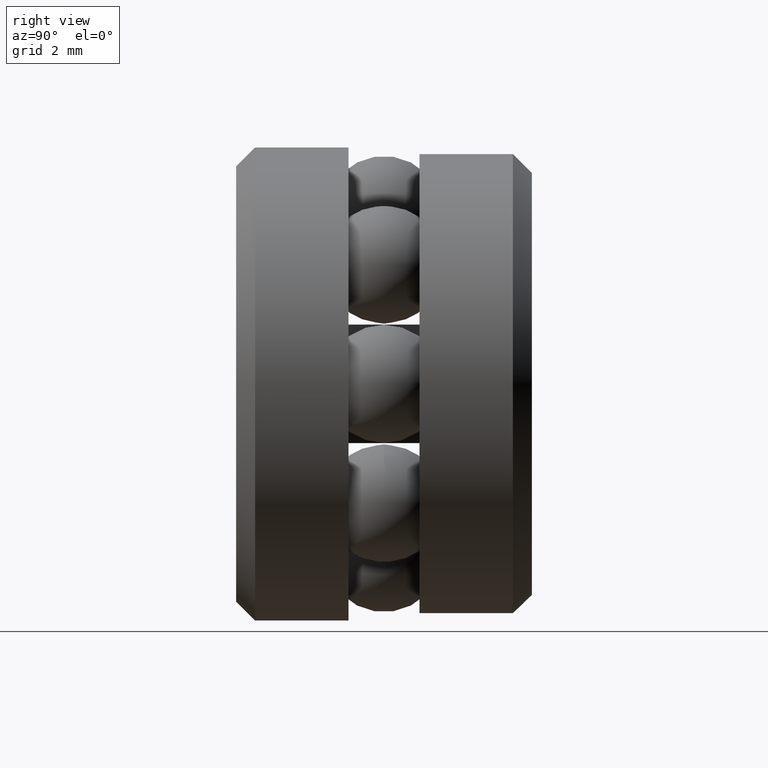
[diagram: clean part render]
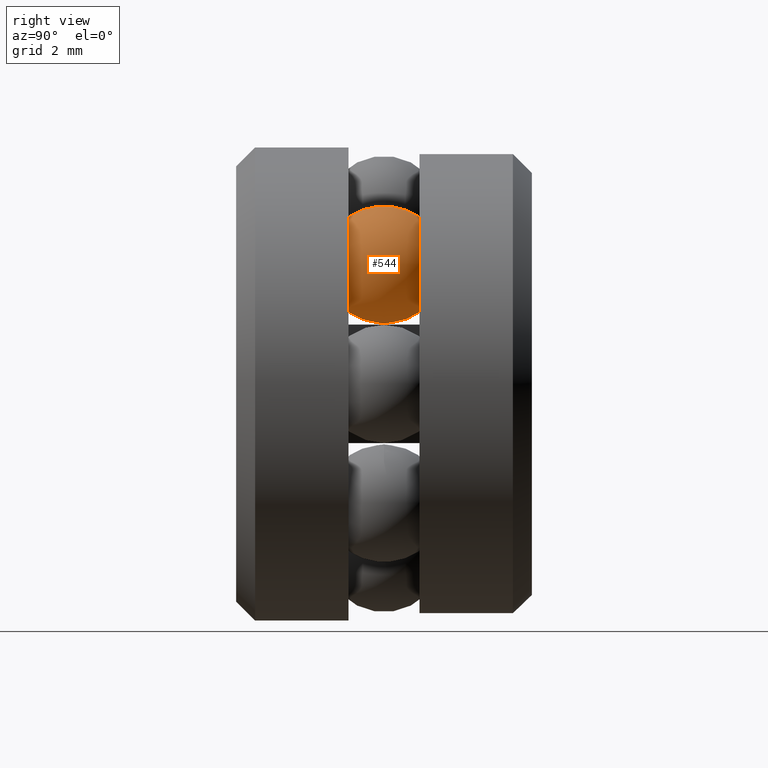
[diagram: same view with one face highlighted and labeled with its STEP entity id]
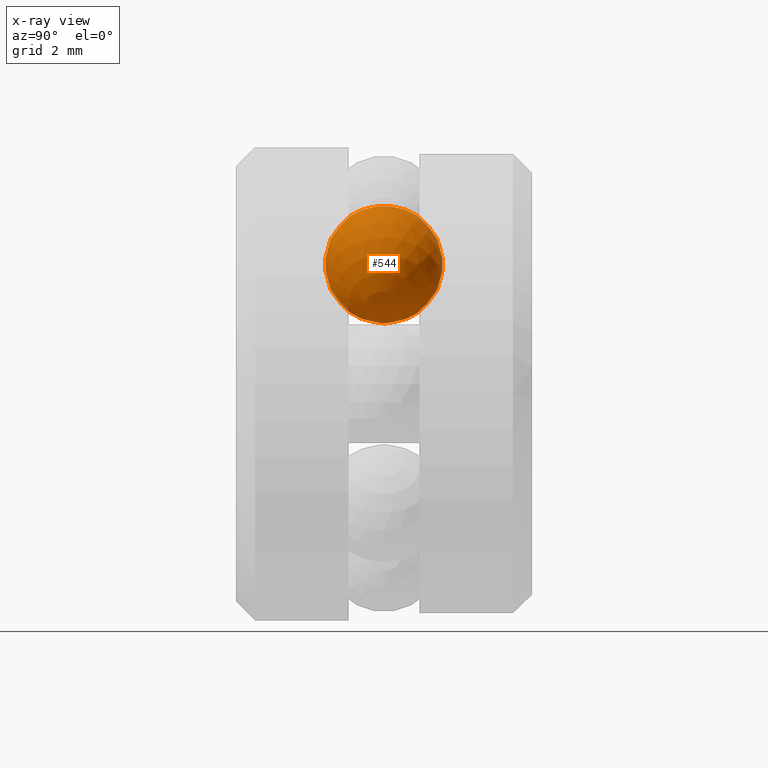
[diagram: x-ray of the same camera — body ghosted, the highlighted face saturated]
A machine part, right view. The second image highlights one B-rep face of the part: STEP entity #544.
The next image is the same camera in x-ray: the body ghosted, the highlighted face saturated — about 1% of this face is hidden behind the body in this view.
In plain terms, the highlighted spherical surface has radius 1.5875 mm.
Its self-contained STEP definition (entity closure, byte-faithful):
#52 = SPHERICAL_SURFACE ( 'NONE', #378, 0.06250000000000001400 ) ;
#378 = AXIS2_PLACEMENT_3D ( 'NONE', #557, #555, #545 ) ;
#544 = ADVANCED_FACE ( 'NONE', ( ), #52, .T. ) ;
#545 = DIRECTION ( 'NONE',  ( -0.7071067811865512400, 0.0000000000000000000, -0.7071067811865438000 ) ) ;
#555 = DIRECTION ( 'NONE',  ( -0.7071067811865438000, 0.0000000000000000000, 0.7071067811865512400 ) ) ;
#557 = CARTESIAN_POINT ( 'NONE',  ( 0.1262185604417993500, 0.1562500000000000000, 0.1262185604417980500 ) ) ;